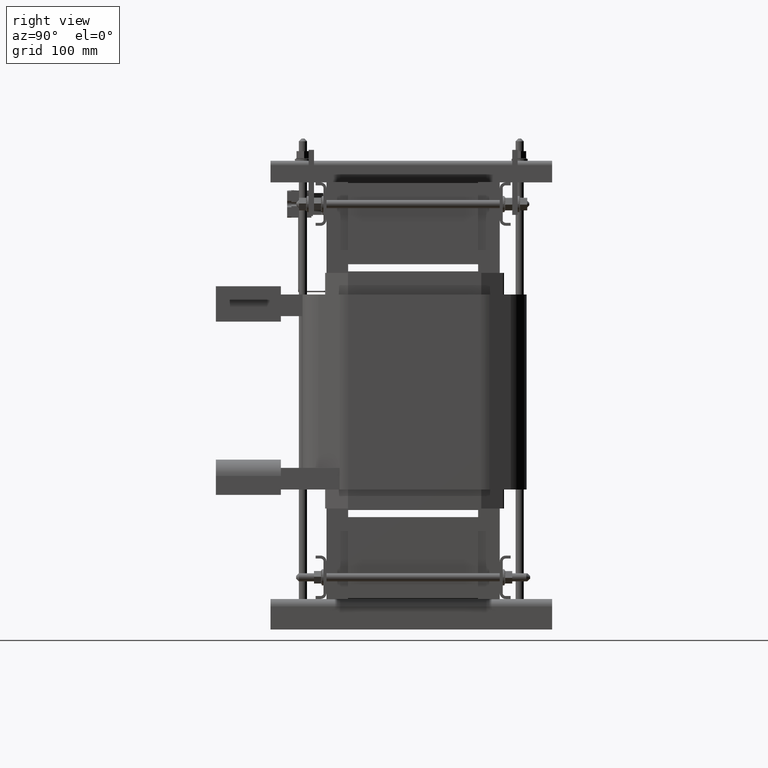
[diagram: clean part render]
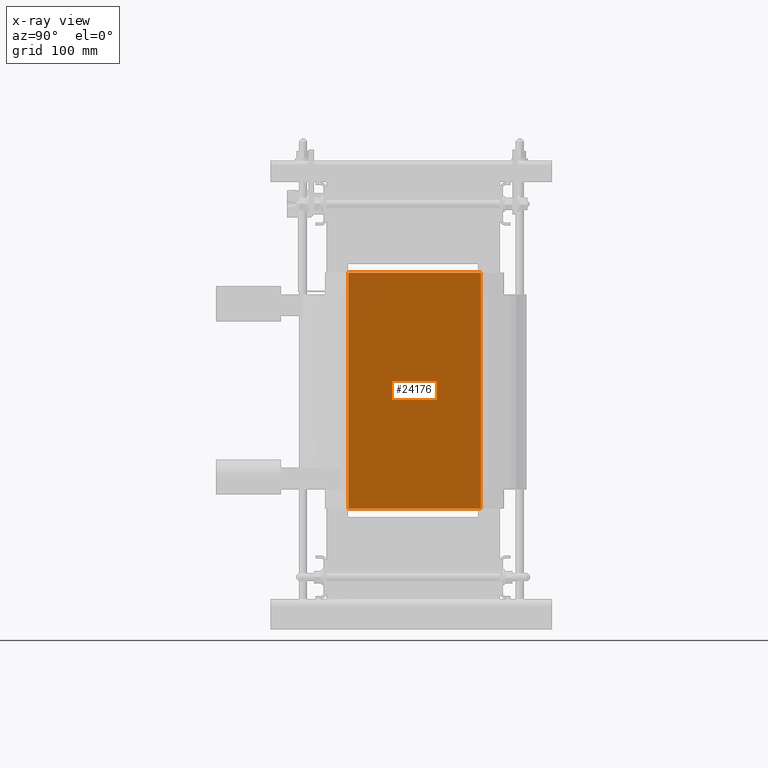
[diagram: x-ray — body ghosted, one internal face saturated and labeled with its STEP entity id]
A machine part, right view, then the same camera in x-ray: the body is ghosted and one INTERNAL B-rep face — a face not visible from any outside direction — is saturated and labeled: STEP entity #24176.
In plain terms, the highlighted planar face has unit normal (1, 0, -0).
Its self-contained STEP definition (entity closure, byte-faithful):
#3062=FACE_OUTER_BOUND('',#4427,.T.);
#4427=EDGE_LOOP('',(#18707,#18708,#18709,#18710));
#6281=LINE('',#39368,#8634);
#6282=LINE('',#39371,#8635);
#6283=LINE('',#39373,#8636);
#6284=LINE('',#39374,#8637);
#8634=VECTOR('',#29631,0.393700787401575);
#8635=VECTOR('',#29634,0.393700787401575);
#8636=VECTOR('',#29635,0.393700787401575);
#8637=VECTOR('',#29636,0.393700787401575);
#10929=VERTEX_POINT('',#39364);
#10930=VERTEX_POINT('',#39366);
#10931=VERTEX_POINT('',#39370);
#10932=VERTEX_POINT('',#39372);
#13738=EDGE_CURVE('',#10930,#10929,#6281,.T.);
#13739=EDGE_CURVE('',#10929,#10931,#6282,.T.);
#13740=EDGE_CURVE('',#10932,#10930,#6283,.T.);
#13741=EDGE_CURVE('',#10932,#10931,#6284,.T.);
#18707=ORIENTED_EDGE('',*,*,#13739,.F.);
#18708=ORIENTED_EDGE('',*,*,#13738,.F.);
#18709=ORIENTED_EDGE('',*,*,#13740,.F.);
#18710=ORIENTED_EDGE('',*,*,#13741,.T.);
#23217=PLANE('',#26094);
#24176=ADVANCED_FACE('',(#3062),#23217,.F.);
#26094=AXIS2_PLACEMENT_3D('',#39369,#29632,#29633);
#29631=DIRECTION('',(0.,0.,1.));
#29632=DIRECTION('center_axis',(1.,1.59845642447678E-15,0.));
#29633=DIRECTION('ref_axis',(0.,0.,-1.));
#29634=DIRECTION('',(1.59845642447678E-15,-1.,0.));
#29635=DIRECTION('',(-1.59845642447678E-15,1.,0.));
#29636=DIRECTION('',(0.,0.,1.));
#39364=CARTESIAN_POINT('',(3.75999999999991,5.99637330836452,5.44));
#39366=CARTESIAN_POINT('',(3.75999999999991,5.99637330836452,-5.44));
#39368=CARTESIAN_POINT('',(3.75999999999991,5.99637330836452,0.));
#39369=CARTESIAN_POINT('Origin',(3.75999999999991,5.99637330836452,0.));
#39370=CARTESIAN_POINT('',(3.75999999999992,-0.128875437466978,5.44));
#39371=CARTESIAN_POINT('',(3.75999999999991,4.46895139976024,5.44));
#39372=CARTESIAN_POINT('',(3.75999999999992,-0.128875437466978,-5.44));
#39373=CARTESIAN_POINT('',(3.75999999999991,4.46895139976024,-5.44));
#39374=CARTESIAN_POINT('',(3.75999999999992,-0.128875437466978,0.));